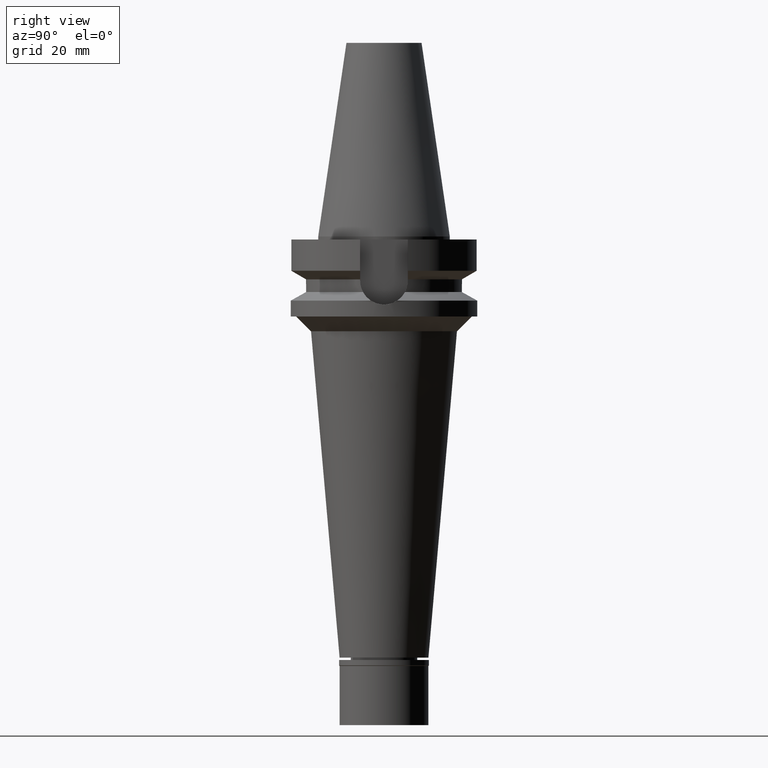
[diagram: clean part render]
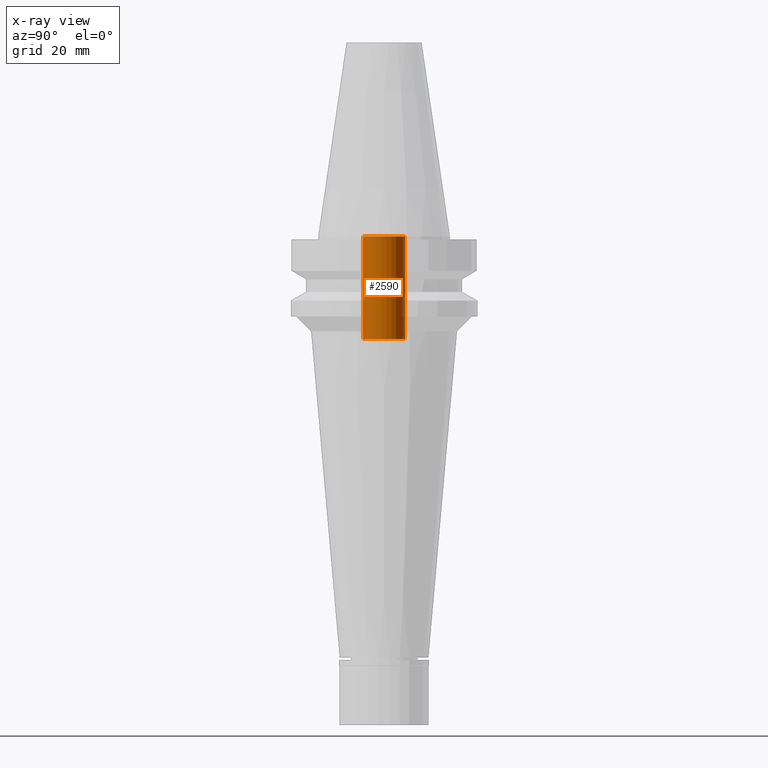
[diagram: x-ray — body ghosted, one internal face saturated and labeled with its STEP entity id]
A machine part, right view, then the same camera in x-ray: the body is ghosted and one INTERNAL B-rep face — a face not visible from any outside direction — is saturated and labeled: STEP entity #2590.
In plain terms, the highlighted cylindrical surface (edge-blend (fillet) strip) has radius 7.1 mm, axis along (0, 0, -1).
Its self-contained STEP definition (entity closure, byte-faithful):
#48 = EDGE_CURVE ( 'NONE', #2963, #2792, #967, .T. ) ;
#212 = DIRECTION ( 'NONE',  ( 0.0000000000000000000, -1.000000000000000000, 0.0000000000000000000 ) ) ;
#259 = CARTESIAN_POINT ( 'NONE',  ( 0.0000000000000000000, -7.100000000000000533, -34.60000000000000142 ) ) ;
#417 = LINE ( 'NONE', #1671, #1411 ) ;
#450 = DIRECTION ( 'NONE',  ( 0.0000000000000000000, -1.000000000000000000, 0.0000000000000000000 ) ) ;
#549 = EDGE_CURVE ( 'NONE', #2963, #1163, #2856, .T. ) ;
#673 = DIRECTION ( 'NONE',  ( 0.0000000000000000000, 0.0000000000000000000, 1.000000000000000000 ) ) ;
#716 = CYLINDRICAL_SURFACE ( 'NONE', #981, 7.100000000000000533 ) ;
#879 = CIRCLE ( 'NONE', #2147, 7.100000000000000533 ) ;
#967 = LINE ( 'NONE', #2873, #2447 ) ;
#981 = AXIS2_PLACEMENT_3D ( 'NONE', #1223, #1688, #212 ) ;
#994 = EDGE_CURVE ( 'NONE', #1163, #2341, #417, .T. ) ;
#1058 = ORIENTED_EDGE ( 'NONE', *, *, #1511, .T. ) ;
#1163 = VERTEX_POINT ( 'NONE', #259 ) ;
#1223 = CARTESIAN_POINT ( 'NONE',  ( 0.0000000000000000000, 2.162542550273999956E-14, 76.58499999999999375 ) ) ;
#1398 = CARTESIAN_POINT ( 'NONE',  ( 0.0000000000000000000, 2.162542550273999956E-14, -2.842170943039999687E-14 ) ) ;
#1411 = VECTOR ( 'NONE', #1633, 1000.000000000000000 ) ;
#1511 = EDGE_CURVE ( 'NONE', #2341, #2792, #879, .T. ) ;
#1603 = CARTESIAN_POINT ( 'NONE',  ( 0.0000000000000000000, 7.100000000000000533, -34.60000000000000142 ) ) ;
#1633 = DIRECTION ( 'NONE',  ( 0.0000000000000000000, 0.0000000000000000000, 1.000000000000000000 ) ) ;
#1671 = CARTESIAN_POINT ( 'NONE',  ( 0.0000000000000000000, -7.100000000000000533, -34.60000000000000142 ) ) ;
#1688 = DIRECTION ( 'NONE',  ( 0.0000000000000000000, 0.0000000000000000000, -1.000000000000000000 ) ) ;
#1742 = DIRECTION ( 'NONE',  ( 0.0000000000000000000, 0.0000000000000000000, 1.000000000000000000 ) ) ;
#1793 = CARTESIAN_POINT ( 'NONE',  ( 0.0000000000000000000, -7.100000000000000533, -2.842170943039999687E-14 ) ) ;
#1967 = FACE_OUTER_BOUND ( 'NONE', #2158, .T. ) ;
#2079 = ORIENTED_EDGE ( 'NONE', *, *, #48, .F. ) ;
#2099 = AXIS2_PLACEMENT_3D ( 'NONE', #2226, #2213, #2681 ) ;
#2147 = AXIS2_PLACEMENT_3D ( 'NONE', #1398, #673, #450 ) ;
#2158 = EDGE_LOOP ( 'NONE', ( #2848, #3126, #1058, #2079 ) ) ;
#2213 = DIRECTION ( 'NONE',  ( 0.0000000000000000000, 0.0000000000000000000, -1.000000000000000000 ) ) ;
#2226 = CARTESIAN_POINT ( 'NONE',  ( 0.0000000000000000000, 2.162542550273999956E-14, -34.60000000000000142 ) ) ;
#2267 = CARTESIAN_POINT ( 'NONE',  ( 0.0000000000000000000, 7.100000000000000533, -2.842170943039999687E-14 ) ) ;
#2341 = VERTEX_POINT ( 'NONE', #1793 ) ;
#2447 = VECTOR ( 'NONE', #1742, 1000.000000000000000 ) ;
#2590 = ADVANCED_FACE ( 'NONE', ( #1967 ), #716, .F. ) ;
#2681 = DIRECTION ( 'NONE',  ( 0.0000000000000000000, 1.000000000000000000, 0.0000000000000000000 ) ) ;
#2792 = VERTEX_POINT ( 'NONE', #2267 ) ;
#2848 = ORIENTED_EDGE ( 'NONE', *, *, #549, .T. ) ;
#2856 = CIRCLE ( 'NONE', #2099, 7.100000000000000533 ) ;
#2873 = CARTESIAN_POINT ( 'NONE',  ( 0.0000000000000000000, 7.100000000000000533, -34.60000000000000142 ) ) ;
#2963 = VERTEX_POINT ( 'NONE', #1603 ) ;
#3126 = ORIENTED_EDGE ( 'NONE', *, *, #994, .T. ) ;